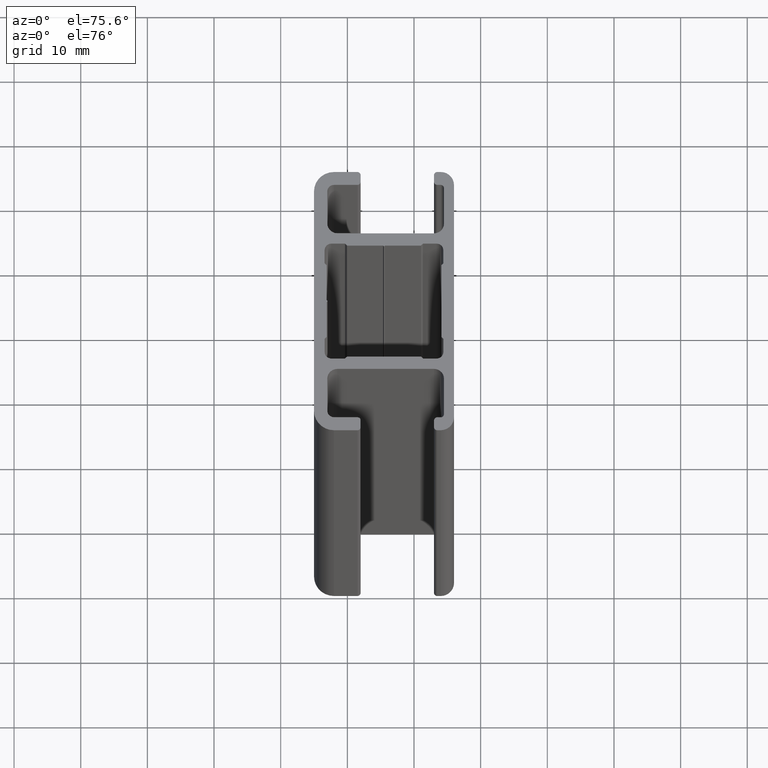
[diagram: clean part render]
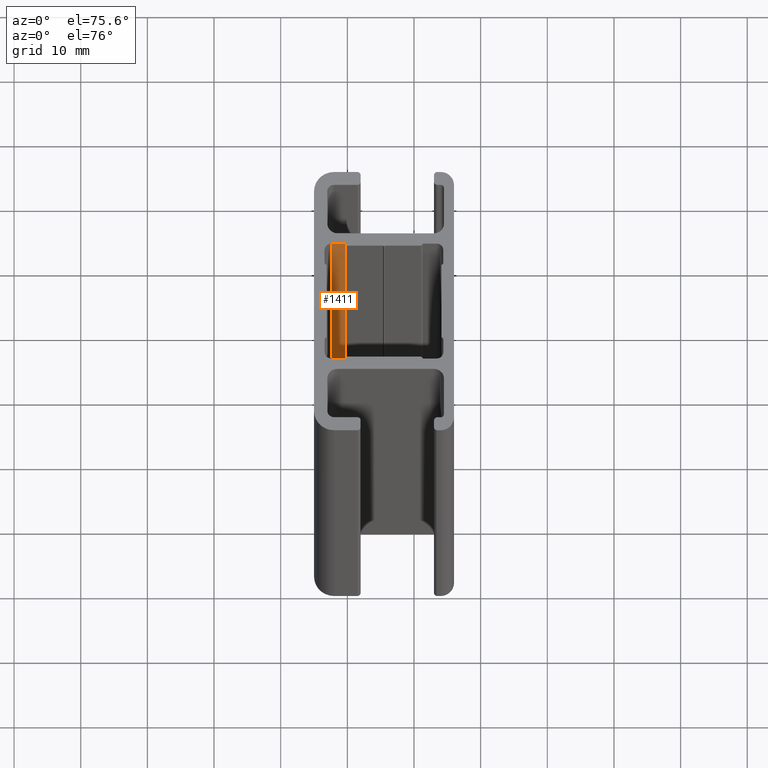
[diagram: same view with one face highlighted and labeled with its STEP entity id]
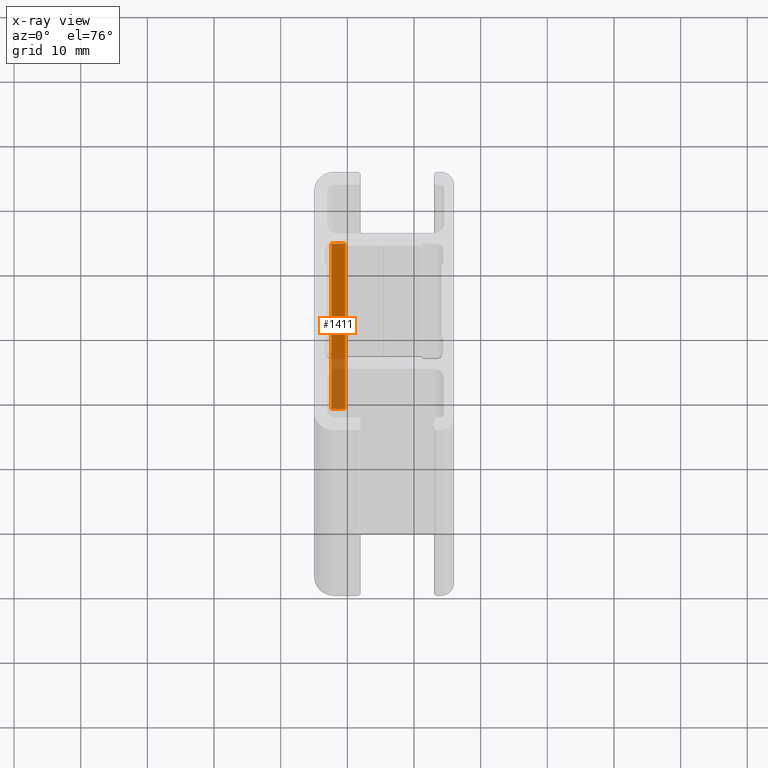
[diagram: x-ray of the same camera — body ghosted, the highlighted face saturated]
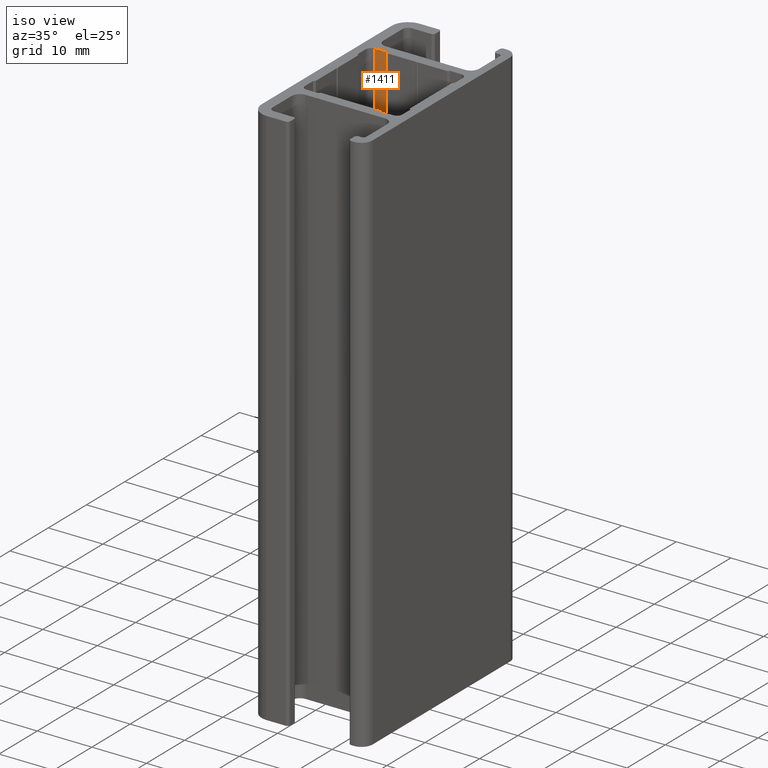
[diagram: same view with one face highlighted and labeled with its STEP entity id]
A machine part, auxiliary view. The second image highlights one B-rep face of the part: STEP entity #1411.
The next image is the same camera in x-ray: the body ghosted, the highlighted face saturated — about 31% of this face is hidden behind the body in this view.
A second angle (iso view) of the same face is appended — the face is thin or edge-on in the first view.
In plain terms, the highlighted planar face has unit normal (-0, 1, 0).
Its self-contained STEP definition (entity closure, byte-faithful):
#40=PLANE('',#1507);
#99=FACE_OUTER_BOUND('',#171,.T.);
#171=EDGE_LOOP('',(#1069,#1070,#1071,#1072));
#292=LINE('',#2185,#454);
#293=LINE('',#2188,#455);
#294=LINE('',#2190,#456);
#295=LINE('',#2191,#457);
#454=VECTOR('',#1766,100.);
#455=VECTOR('',#1769,2.0500000000017);
#456=VECTOR('',#1770,2.0500000000017);
#457=VECTOR('',#1771,100.);
#653=VERTEX_POINT('',#2181);
#654=VERTEX_POINT('',#2183);
#655=VERTEX_POINT('',#2187);
#656=VERTEX_POINT('',#2189);
#826=EDGE_CURVE('',#654,#653,#292,.T.);
#827=EDGE_CURVE('',#653,#655,#293,.T.);
#828=EDGE_CURVE('',#656,#654,#294,.T.);
#829=EDGE_CURVE('',#656,#655,#295,.T.);
#1069=ORIENTED_EDGE('',*,*,#827,.F.);
#1070=ORIENTED_EDGE('',*,*,#826,.F.);
#1071=ORIENTED_EDGE('',*,*,#828,.F.);
#1072=ORIENTED_EDGE('',*,*,#829,.T.);
#1411=ADVANCED_FACE('',(#99),#40,.F.);
#1507=AXIS2_PLACEMENT_3D('',#2186,#1767,#1768);
#1766=DIRECTION('',(0.,0.,1.));
#1767=DIRECTION('center_axis',(-2.18795171682045E-13,1.,0.));
#1768=DIRECTION('ref_axis',(-1.,-2.18847162614111E-13,0.));
#1769=DIRECTION('',(1.,2.18795171682045E-13,0.));
#1770=DIRECTION('',(-1.,-2.18795171682045E-13,0.));
#1771=DIRECTION('',(0.,0.,1.));
#2181=CARTESIAN_POINT('',(-12.4000000000013,8.89999999999972,100.));
#2183=CARTESIAN_POINT('',(-12.4000000000013,8.89999999999972,0.));
#2185=CARTESIAN_POINT('',(-12.4000000000013,8.89999999999972,0.));
#2186=CARTESIAN_POINT('Origin',(-10.3499999999996,8.90000000000017,0.));
#2187=CARTESIAN_POINT('',(-10.3499999999996,8.90000000000017,100.));
#2188=CARTESIAN_POINT('',(-7.4250000000006,8.90000000000081,100.));
#2189=CARTESIAN_POINT('',(-10.3499999999996,8.90000000000017,0.));
#2190=CARTESIAN_POINT('',(-7.4250000000006,8.90000000000081,0.));
#2191=CARTESIAN_POINT('',(-10.3499999999996,8.90000000000017,0.));